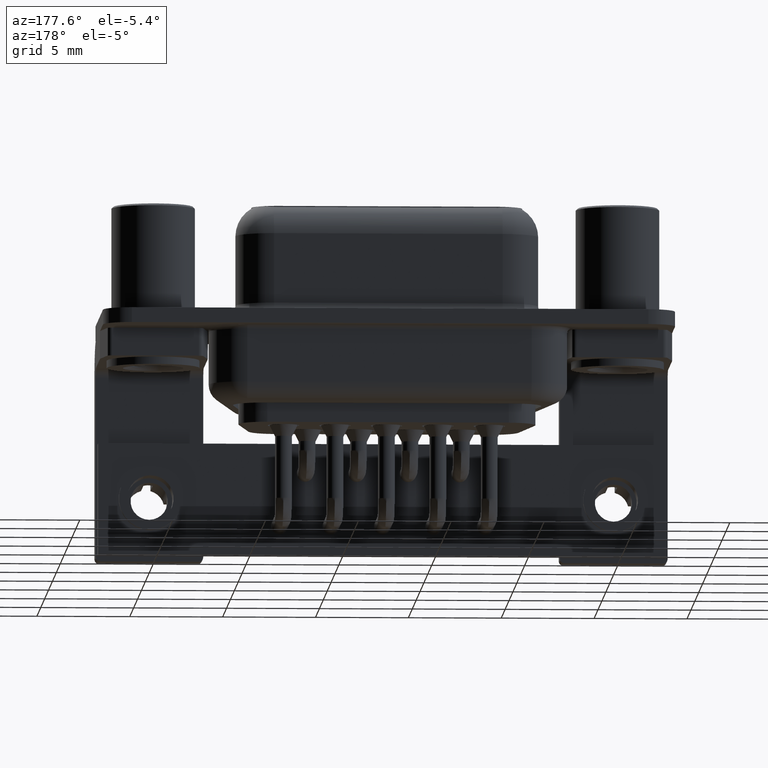
[diagram: clean part render]
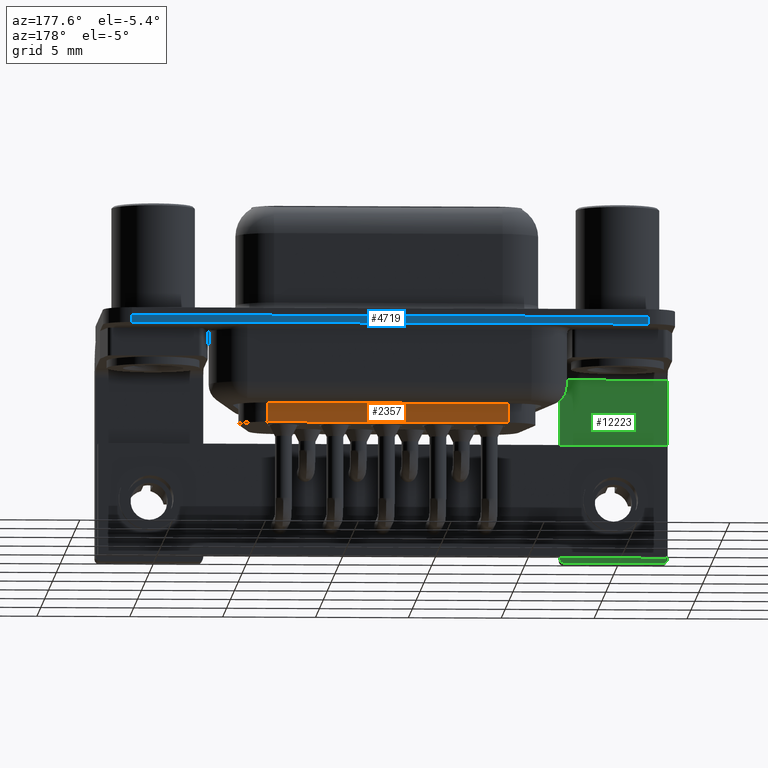
[diagram: same view with three faces highlighted in distinct colors, each labeled with its STEP entity id]
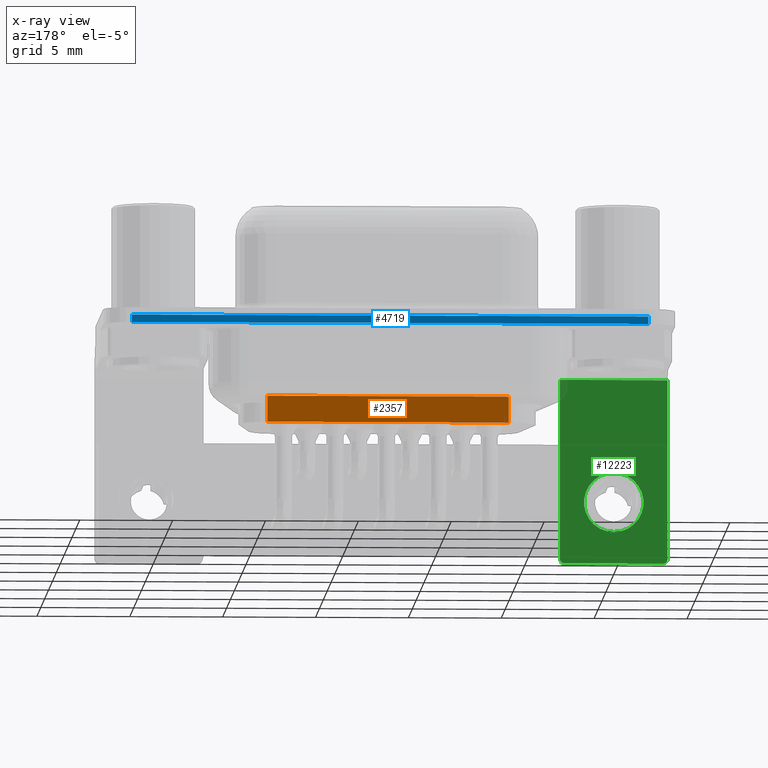
[diagram: x-ray of the same camera — body ghosted, the three highlighted faces saturated]
A machine part, auxiliary view with three faces highlighted in distinct colors.
The next image is the same camera in x-ray (body ghosted, the three faces saturated) — at least one of them is partly hidden behind the body in this view.
Their STEP definitions:

[orange] entity #2357 — the highlighted planar face has unit normal (0, 1, 0).
#643 = EDGE_CURVE ( 'NONE', #866, #11172, #17832, .T. ) ;
#866 = VERTEX_POINT ( 'NONE', #2688 ) ;
#1522 = ORIENTED_EDGE ( 'NONE', *, *, #6942, .T. ) ;
#2245 = LINE ( 'NONE', #17679, #14243 ) ;
#2357 = ADVANCED_FACE ( 'NONE', ( #13902 ), #10219, .T. ) ;
#2688 = CARTESIAN_POINT ( 'NONE',  ( 6.000836492361093700, 3.500000000000004900, -5.500000000000000000 ) ) ;
#2925 = CARTESIAN_POINT ( 'NONE',  ( 18.99916350763890800, 3.500000000000003100, -5.500000000000000000 ) ) ;
#2976 = CARTESIAN_POINT ( 'NONE',  ( 5.435971564969176700, 3.500000000000004900, -4.096662954709576500 ) ) ;
#2997 = DIRECTION ( 'NONE',  ( -1.000000000000000000, 1.334574421722017600E-016, 0.0000000000000000000 ) ) ;
#3466 = VERTEX_POINT ( 'NONE', #11909 ) ;
#5354 = VECTOR ( 'NONE', #8614, 1000.000000000000000 ) ;
#6129 = ORIENTED_EDGE ( 'NONE', *, *, #13867, .F. ) ;
#6746 = DIRECTION ( 'NONE',  ( 0.0000000000000000000, 0.0000000000000000000, -1.000000000000000000 ) ) ;
#6942 = EDGE_CURVE ( 'NONE', #3466, #11172, #2245, .T. ) ;
#7554 = EDGE_LOOP ( 'NONE', ( #6129, #20295, #1522, #11479 ) ) ;
#7754 = DIRECTION ( 'NONE',  ( 1.000000000000000000, 1.227857087447608800E-016, -0.0000000000000000000 ) ) ;
#8305 = LINE ( 'NONE', #2976, #11968 ) ;
#8614 = DIRECTION ( 'NONE',  ( 1.000000000000000000, -1.334574421722017600E-016, -0.0000000000000000000 ) ) ;
#8839 = AXIS2_PLACEMENT_3D ( 'NONE', #10564, #10148, #2997 ) ;
#10148 = DIRECTION ( 'NONE',  ( 1.334574421722017600E-016, 1.000000000000000000, 0.0000000000000000000 ) ) ;
#10219 = PLANE ( 'NONE',  #8839 ) ;
#10564 = CARTESIAN_POINT ( 'NONE',  ( 18.99916350763890800, 3.500000000000003100, -3.099999999999999600 ) ) ;
#10706 = CARTESIAN_POINT ( 'NONE',  ( 6.000836492361093700, 3.500000000000004900, -4.096662954709576500 ) ) ;
#11172 = VERTEX_POINT ( 'NONE', #2925 ) ;
#11479 = ORIENTED_EDGE ( 'NONE', *, *, #643, .F. ) ;
#11697 = VECTOR ( 'NONE', #15006, 1000.000000000000000 ) ;
#11909 = CARTESIAN_POINT ( 'NONE',  ( 18.99916350763890800, 3.500000000000006700, -4.096662954709576500 ) ) ;
#11968 = VECTOR ( 'NONE', #7754, 1000.000000000000000 ) ;
#13420 = VERTEX_POINT ( 'NONE', #10706 ) ;
#13867 = EDGE_CURVE ( 'NONE', #13420, #866, #20060, .T. ) ;
#13902 = FACE_OUTER_BOUND ( 'NONE', #7554, .T. ) ;
#14243 = VECTOR ( 'NONE', #6746, 1000.000000000000000 ) ;
#15006 = DIRECTION ( 'NONE',  ( 0.0000000000000000000, 0.0000000000000000000, -1.000000000000000000 ) ) ;
#16546 = CARTESIAN_POINT ( 'NONE',  ( 6.000836492361093700, 3.500000000000004900, -3.099999999999999600 ) ) ;
#17679 = CARTESIAN_POINT ( 'NONE',  ( 18.99916350763890800, 3.500000000000003100, -3.099999999999999600 ) ) ;
#17832 = LINE ( 'NONE', #20099, #5354 ) ;
#20060 = LINE ( 'NONE', #16546, #11697 ) ;
#20099 = CARTESIAN_POINT ( 'NONE',  ( 18.99916350763890800, 3.500000000000003100, -5.500000000000000000 ) ) ;
#20203 = EDGE_CURVE ( 'NONE', #13420, #3466, #8305, .T. ) ;
#20295 = ORIENTED_EDGE ( 'NONE', *, *, #20203, .T. ) ;

[blue] entity #4719 — the highlighted planar face has unit normal (-0, 1, 0).
#35 = LINE ( 'NONE', #11023, #16162 ) ;
#112 = AXIS2_PLACEMENT_3D ( 'NONE', #13880, #7847, #19138 ) ;
#1417 = VERTEX_POINT ( 'NONE', #11874 ) ;
#3124 = DIRECTION ( 'NONE',  ( 0.0000000000000000000, 0.0000000000000000000, 1.000000000000000000 ) ) ;
#3622 = VERTEX_POINT ( 'NONE', #15397 ) ;
#4155 = CARTESIAN_POINT ( 'NONE',  ( 26.39999999999999900, 6.250000000000002700, 0.0000000000000000000 ) ) ;
#4719 = ADVANCED_FACE ( 'NONE', ( #12850 ), #11052, .T. ) ;
#5684 = VECTOR ( 'NONE', #3124, 1000.000000000000000 ) ;
#6365 = DIRECTION ( 'NONE',  ( -1.000000000000000000, -1.248002500702739000E-016, 0.0000000000000000000 ) ) ;
#6944 = VECTOR ( 'NONE', #19768, 1000.000000000000000 ) ;
#7573 = VECTOR ( 'NONE', #15152, 1000.000000000000000 ) ;
#7847 = DIRECTION ( 'NONE',  ( -1.248002500702739000E-016, 1.000000000000000000, 0.0000000000000000000 ) ) ;
#7976 = EDGE_CURVE ( 'NONE', #1417, #3622, #35, .T. ) ;
#8299 = CARTESIAN_POINT ( 'NONE',  ( 26.39999999999999900, 6.250000000000003600, 0.0000000000000000000 ) ) ;
#8751 = ORIENTED_EDGE ( 'NONE', *, *, #13340, .F. ) ;
#8802 = CARTESIAN_POINT ( 'NONE',  ( 26.39999999999999900, 6.250000000000003600, -0.4000000000000000200 ) ) ;
#9653 = VERTEX_POINT ( 'NONE', #13013 ) ;
#11023 = CARTESIAN_POINT ( 'NONE',  ( 26.39999999999999900, 6.250000000000002700, -0.4000000000000000200 ) ) ;
#11052 = PLANE ( 'NONE',  #112 ) ;
#11254 = EDGE_CURVE ( 'NONE', #3622, #9653, #17676, .T. ) ;
#11328 = EDGE_LOOP ( 'NONE', ( #8751, #13167, #15888, #19153 ) ) ;
#11874 = CARTESIAN_POINT ( 'NONE',  ( 26.39999999999999900, 6.250000000000003600, -0.4000000000000000200 ) ) ;
#11926 = VERTEX_POINT ( 'NONE', #8299 ) ;
#12850 = FACE_OUTER_BOUND ( 'NONE', #11328, .T. ) ;
#13013 = CARTESIAN_POINT ( 'NONE',  ( -1.399999999999998600, 6.249999999999999100, 0.0000000000000000000 ) ) ;
#13167 = ORIENTED_EDGE ( 'NONE', *, *, #16466, .F. ) ;
#13340 = EDGE_CURVE ( 'NONE', #11926, #9653, #15891, .T. ) ;
#13880 = CARTESIAN_POINT ( 'NONE',  ( 26.39999999999999900, 6.250000000000002700, -0.4000000000000000200 ) ) ;
#14068 = CARTESIAN_POINT ( 'NONE',  ( -1.399999999999998600, 6.249999999999999100, -0.4000000000000000200 ) ) ;
#15152 = DIRECTION ( 'NONE',  ( -1.000000000000000000, -1.248002500702739000E-016, 0.0000000000000000000 ) ) ;
#15245 = LINE ( 'NONE', #8802, #6944 ) ;
#15397 = CARTESIAN_POINT ( 'NONE',  ( -1.399999999999998600, 6.249999999999999100, -0.4000000000000000200 ) ) ;
#15888 = ORIENTED_EDGE ( 'NONE', *, *, #7976, .T. ) ;
#15891 = LINE ( 'NONE', #4155, #7573 ) ;
#16162 = VECTOR ( 'NONE', #6365, 1000.000000000000000 ) ;
#16466 = EDGE_CURVE ( 'NONE', #1417, #11926, #15245, .T. ) ;
#17676 = LINE ( 'NONE', #14068, #5684 ) ;
#19138 = DIRECTION ( 'NONE',  ( -1.000000000000000000, -1.248002500702739000E-016, 0.0000000000000000000 ) ) ;
#19153 = ORIENTED_EDGE ( 'NONE', *, *, #11254, .T. ) ;
#19768 = DIRECTION ( 'NONE',  ( 0.0000000000000000000, 0.0000000000000000000, 1.000000000000000000 ) ) ;

[green] entity #12223 — the highlighted planar face has unit normal (0, -1, 0).
#267 = CARTESIAN_POINT ( 'NONE',  ( 2.899999999999999900, -4.749999999999999100, -2.400000000000001200 ) ) ;
#274 = DIRECTION ( 'NONE',  ( -0.0000000000000000000, 1.000000000000000000, -0.0000000000000000000 ) ) ;
#312 = VERTEX_POINT ( 'NONE', #13634 ) ;
#727 = ORIENTED_EDGE ( 'NONE', *, *, #3568, .T. ) ;
#1378 = PLANE ( 'NONE',  #6909 ) ;
#1887 = VECTOR ( 'NONE', #19970, 1000.000000000000000 ) ;
#1966 = VERTEX_POINT ( 'NONE', #15158 ) ;
#2285 = VERTEX_POINT ( 'NONE', #2294 ) ;
#2294 = CARTESIAN_POINT ( 'NONE',  ( 1.959434878635766700E-016, -4.749999999999998200, -10.61000000000000100 ) ) ;
#2897 = AXIS2_PLACEMENT_3D ( 'NONE', #9615, #274, #11201 ) ;
#2914 = EDGE_CURVE ( 'NONE', #6855, #3796, #6044, .T. ) ;
#2953 = DIRECTION ( 'NONE',  ( 0.0000000000000000000, -0.0000000000000000000, -1.000000000000000000 ) ) ;
#3447 = FACE_BOUND ( 'NONE', #10290, .T. ) ;
#3568 = EDGE_CURVE ( 'NONE', #14935, #3796, #17520, .T. ) ;
#3796 = VERTEX_POINT ( 'NONE', #3925 ) ;
#3925 = CARTESIAN_POINT ( 'NONE',  ( -2.899999999999999900, -4.749999999999999100, -2.400000000000001200 ) ) ;
#3949 = ORIENTED_EDGE ( 'NONE', *, *, #17976, .F. ) ;
#3986 = CIRCLE ( 'NONE', #16604, 1.600000000000000800 ) ;
#6044 = LINE ( 'NONE', #18787, #1887 ) ;
#6205 = VERTEX_POINT ( 'NONE', #7491 ) ;
#6479 = CARTESIAN_POINT ( 'NONE',  ( 0.0000000000000000000, -4.749999999999998200, -9.009999999999999800 ) ) ;
#6559 = EDGE_CURVE ( 'NONE', #2285, #312, #3986, .T. ) ;
#6659 = LINE ( 'NONE', #10513, #18144 ) ;
#6855 = VERTEX_POINT ( 'NONE', #267 ) ;
#6889 = ORIENTED_EDGE ( 'NONE', *, *, #9980, .F. ) ;
#6909 = AXIS2_PLACEMENT_3D ( 'NONE', #9101, #12315, #2953 ) ;
#6933 = CIRCLE ( 'NONE', #6982, 1.600000000000000800 ) ;
#6982 = AXIS2_PLACEMENT_3D ( 'NONE', #6479, #17393, #8037 ) ;
#7491 = CARTESIAN_POINT ( 'NONE',  ( 2.649999999999999500, -4.749999999999999100, -12.30000000000000100 ) ) ;
#7622 = FACE_OUTER_BOUND ( 'NONE', #9456, .T. ) ;
#7734 = DIRECTION ( 'NONE',  ( -1.000000000000000000, -0.0000000000000000000, -0.0000000000000000000 ) ) ;
#7936 = CARTESIAN_POINT ( 'NONE',  ( 2.649999999999999500, -4.749999999999999100, -12.05000000000000100 ) ) ;
#8037 = DIRECTION ( 'NONE',  ( 0.0000000000000000000, 0.0000000000000000000, 1.000000000000000000 ) ) ;
#8215 = LINE ( 'NONE', #20286, #16516 ) ;
#8922 = CARTESIAN_POINT ( 'NONE',  ( 2.899999999999999900, -4.749999999999999100, -12.05000000000000100 ) ) ;
#8926 = DIRECTION ( 'NONE',  ( 0.0000000000000000000, 1.000000000000000000, 8.761229676650543400E-017 ) ) ;
#9101 = CARTESIAN_POINT ( 'NONE',  ( 2.899999999999999900, -4.749999999999999100, -12.30000000000000100 ) ) ;
#9198 = VECTOR ( 'NONE', #15674, 1000.000000000000000 ) ;
#9456 = EDGE_LOOP ( 'NONE', ( #19728, #18545, #727, #11667, #3949, #10239 ) ) ;
#9494 = DIRECTION ( 'NONE',  ( 0.0000000000000000000, 0.0000000000000000000, -1.000000000000000000 ) ) ;
#9615 = CARTESIAN_POINT ( 'NONE',  ( -2.649999999999999500, -4.749999999999999100, -12.05000000000000100 ) ) ;
#9980 = EDGE_CURVE ( 'NONE', #312, #2285, #6933, .T. ) ;
#10239 = ORIENTED_EDGE ( 'NONE', *, *, #17591, .T. ) ;
#10290 = EDGE_LOOP ( 'NONE', ( #6889, #10715 ) ) ;
#10361 = AXIS2_PLACEMENT_3D ( 'NONE', #7936, #18895, #9494 ) ;
#10513 = CARTESIAN_POINT ( 'NONE',  ( 2.899999999999999900, -4.749999999999999100, -12.30000000000000100 ) ) ;
#10715 = ORIENTED_EDGE ( 'NONE', *, *, #6559, .F. ) ;
#11201 = DIRECTION ( 'NONE',  ( 0.0000000000000000000, 0.0000000000000000000, -1.000000000000000000 ) ) ;
#11667 = ORIENTED_EDGE ( 'NONE', *, *, #2914, .F. ) ;
#12223 = ADVANCED_FACE ( 'NONE', ( #3447, #7622 ), #1378, .F. ) ;
#12315 = DIRECTION ( 'NONE',  ( 0.0000000000000000000, -1.000000000000000000, 0.0000000000000000000 ) ) ;
#13303 = VERTEX_POINT ( 'NONE', #8922 ) ;
#13634 = CARTESIAN_POINT ( 'NONE',  ( 0.0000000000000000000, -4.749999999999998200, -7.410000000000000100 ) ) ;
#14935 = VERTEX_POINT ( 'NONE', #19936 ) ;
#15158 = CARTESIAN_POINT ( 'NONE',  ( -2.649999999999999500, -4.749999999999999100, -12.30000000000000100 ) ) ;
#15674 = DIRECTION ( 'NONE',  ( 0.0000000000000000000, 0.0000000000000000000, 1.000000000000000000 ) ) ;
#15859 = EDGE_CURVE ( 'NONE', #6205, #1966, #8215, .T. ) ;
#16516 = VECTOR ( 'NONE', #7734, 1000.000000000000000 ) ;
#16525 = CARTESIAN_POINT ( 'NONE',  ( -2.899999999999999900, -4.749999999999999100, -12.30000000000000100 ) ) ;
#16604 = AXIS2_PLACEMENT_3D ( 'NONE', #18307, #8926, #19913 ) ;
#17393 = DIRECTION ( 'NONE',  ( 0.0000000000000000000, 1.000000000000000000, 8.761229676650543400E-017 ) ) ;
#17520 = LINE ( 'NONE', #16525, #9198 ) ;
#17591 = EDGE_CURVE ( 'NONE', #13303, #6205, #19895, .T. ) ;
#17976 = EDGE_CURVE ( 'NONE', #13303, #6855, #6659, .T. ) ;
#18144 = VECTOR ( 'NONE', #19920, 1000.000000000000000 ) ;
#18255 = EDGE_CURVE ( 'NONE', #1966, #14935, #19372, .T. ) ;
#18307 = CARTESIAN_POINT ( 'NONE',  ( 0.0000000000000000000, -4.749999999999998200, -9.009999999999999800 ) ) ;
#18545 = ORIENTED_EDGE ( 'NONE', *, *, #18255, .T. ) ;
#18787 = CARTESIAN_POINT ( 'NONE',  ( 2.899999999999999900, -4.749999999999999100, -2.400000000000001200 ) ) ;
#18895 = DIRECTION ( 'NONE',  ( -0.0000000000000000000, 1.000000000000000000, -0.0000000000000000000 ) ) ;
#19372 = CIRCLE ( 'NONE', #2897, 0.2500000000000002200 ) ;
#19728 = ORIENTED_EDGE ( 'NONE', *, *, #15859, .T. ) ;
#19895 = CIRCLE ( 'NONE', #10361, 0.2500000000000002200 ) ;
#19913 = DIRECTION ( 'NONE',  ( 0.0000000000000000000, 0.0000000000000000000, 1.000000000000000000 ) ) ;
#19920 = DIRECTION ( 'NONE',  ( 0.0000000000000000000, 0.0000000000000000000, 1.000000000000000000 ) ) ;
#19936 = CARTESIAN_POINT ( 'NONE',  ( -2.899999999999999900, -4.749999999999999100, -12.05000000000000100 ) ) ;
#19970 = DIRECTION ( 'NONE',  ( -1.000000000000000000, -0.0000000000000000000, -0.0000000000000000000 ) ) ;
#20286 = CARTESIAN_POINT ( 'NONE',  ( 2.899999999999999900, -4.749999999999999100, -12.30000000000000100 ) ) ;